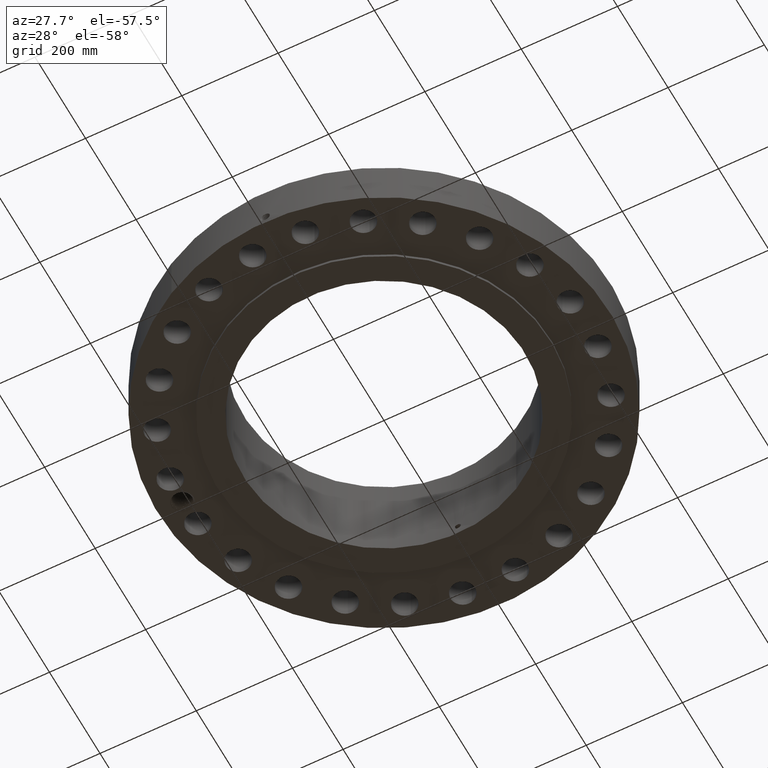
[diagram: clean part render]
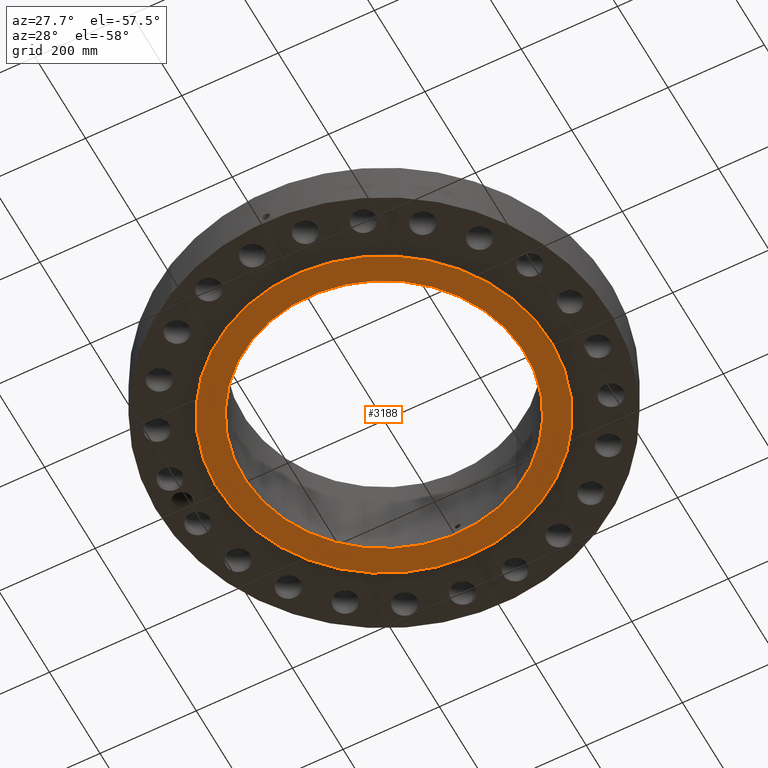
[diagram: same view with one face highlighted and labeled with its STEP entity id]
A machine part, auxiliary view. The second image highlights one B-rep face of the part: STEP entity #3188.
In plain terms, the highlighted planar face has unit normal (0, 0, -1).
Its self-contained STEP definition (entity closure, byte-faithful):
#1736=AXIS2_PLACEMENT_3D('Circle Axis2P3D',#1734,#1735,$) ;
#1762=AXIS2_PLACEMENT_3D('Circle Axis2P3D',#1760,#1761,$) ;
#3164=AXIS2_PLACEMENT_3D('Plane Axis2P3D',#3161,#3162,#3163) ;
#3172=AXIS2_PLACEMENT_3D('Circle Axis2P3D',#3170,#3171,$) ;
#3181=AXIS2_PLACEMENT_3D('Circle Axis2P3D',#3179,#3180,$) ;
#1734=CARTESIAN_POINT('Axis2P3D Location',(0.,0.,1.67844740731E-015)) ;
#1738=CARTESIAN_POINT('Vertex',(6.53217296351,11.9570624058,1.67844740731E-015)) ;
#1740=CARTESIAN_POINT('Vertex',(-6.53217296351,-11.9570624058,1.67844740731E-015)) ;
#1760=CARTESIAN_POINT('Axis2P3D Location',(0.,0.,1.67844740731E-015)) ;
#3161=CARTESIAN_POINT('Axis2P3D Location',(0.,11.5,0.)) ;
#3170=CARTESIAN_POINT('Axis2P3D Location',(0.,0.,0.)) ;
#3174=CARTESIAN_POINT('Vertex',(5.51339369397,10.0921994618,-8.05654755508E-014)) ;
#3176=CARTESIAN_POINT('Vertex',(-5.51339369397,-10.0921994618,-8.05654755508E-014)) ;
#3179=CARTESIAN_POINT('Axis2P3D Location',(0.,0.,0.)) ;
#1735=DIRECTION('Axis2P3D Direction',(0.,0.,-0.0393700787402)) ;
#1761=DIRECTION('Axis2P3D Direction',(0.,0.,-0.0393700787402)) ;
#3162=DIRECTION('Axis2P3D Direction',(0.,0.,-0.0393700787402)) ;
#3163=DIRECTION('Axis2P3D XDirection',(0.0393700787402,0.,0.)) ;
#3171=DIRECTION('Axis2P3D Direction',(0.,0.,-0.0393700787402)) ;
#3180=DIRECTION('Axis2P3D Direction',(0.,0.,-0.0393700787402)) ;
#3167=ORIENTED_EDGE('',*,*,#1764,.T.) ;
#3168=ORIENTED_EDGE('',*,*,#1742,.T.) ;
#3185=ORIENTED_EDGE('',*,*,#3178,.F.) ;
#3186=ORIENTED_EDGE('',*,*,#3183,.F.) ;
#3187=FACE_BOUND('',#3184,.T.) ;
#3188=ADVANCED_FACE('PartBody',(#3169,#3187),#3165,.T.) ;
#1737=CIRCLE('generated circle',#1736,13.6250000001) ;
#1763=CIRCLE('generated circle',#1762,13.6250000001) ;
#3173=CIRCLE('generated circle',#3172,11.5) ;
#3182=CIRCLE('generated circle',#3181,11.5) ;
#1742=EDGE_CURVE('',#1739,#1741,#1737,.T.) ;
#1764=EDGE_CURVE('',#1741,#1739,#1763,.T.) ;
#3178=EDGE_CURVE('',#3175,#3177,#3173,.T.) ;
#3183=EDGE_CURVE('',#3177,#3175,#3182,.T.) ;
#3166=EDGE_LOOP('',(#3167,#3168)) ;
#3184=EDGE_LOOP('',(#3185,#3186)) ;
#3169=FACE_OUTER_BOUND('',#3166,.T.) ;
#3165=PLANE('',#3164) ;
#1739=VERTEX_POINT('',#1738) ;
#1741=VERTEX_POINT('',#1740) ;
#3175=VERTEX_POINT('',#3174) ;
#3177=VERTEX_POINT('',#3176) ;